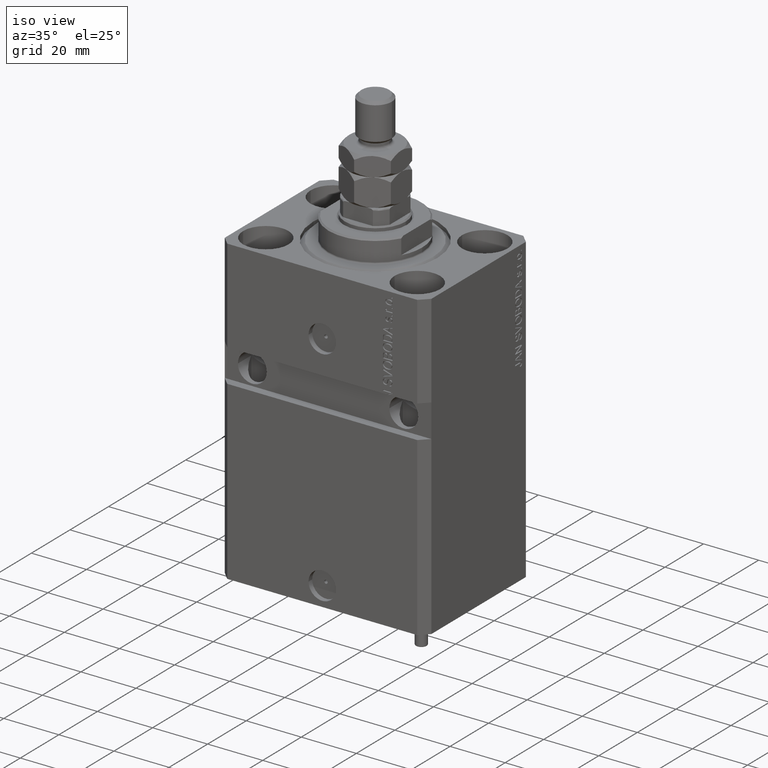
[diagram: clean part render]
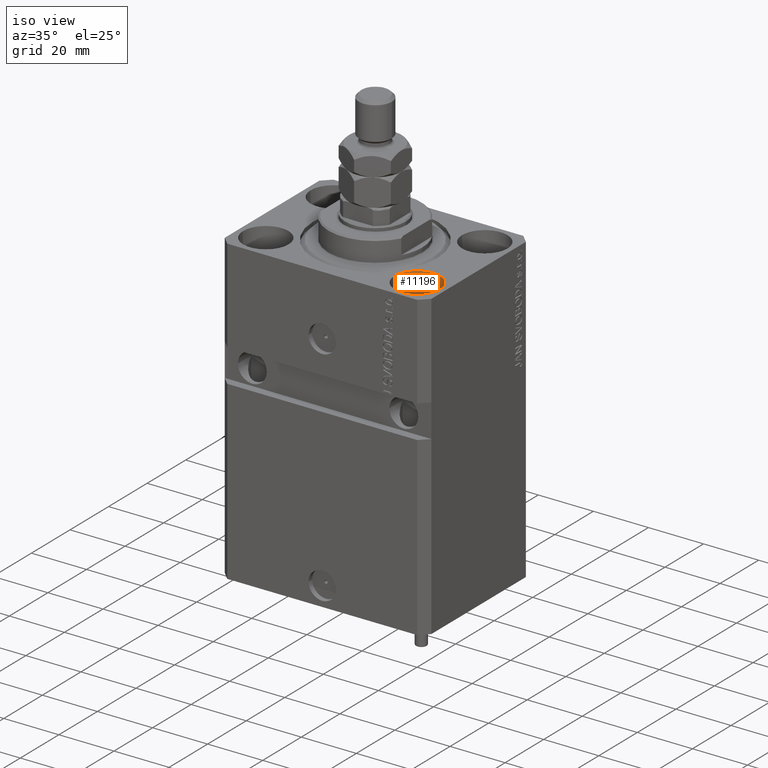
[diagram: same view with one face highlighted and labeled with its STEP entity id]
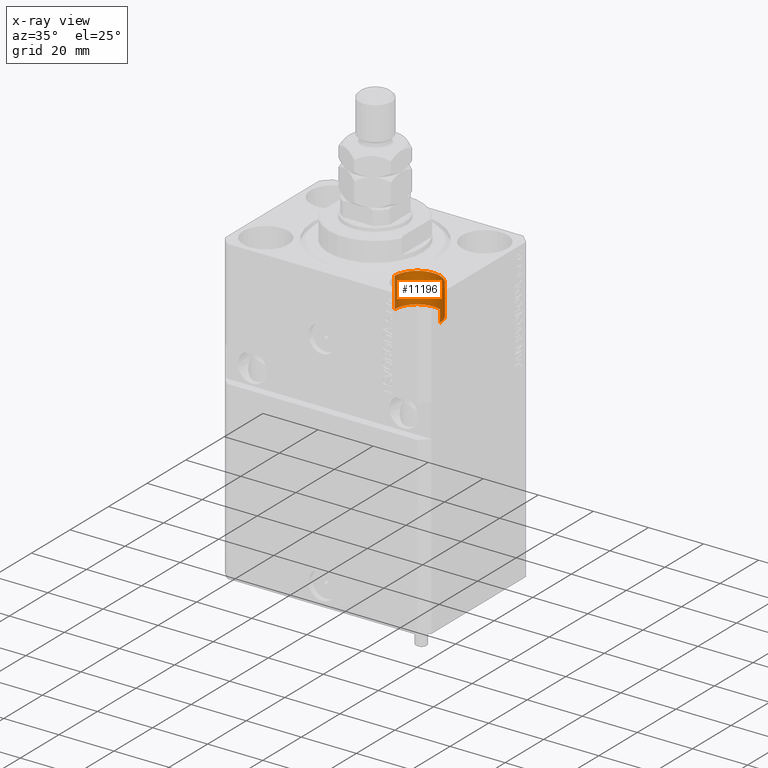
[diagram: x-ray of the same camera — body ghosted, the highlighted face saturated]
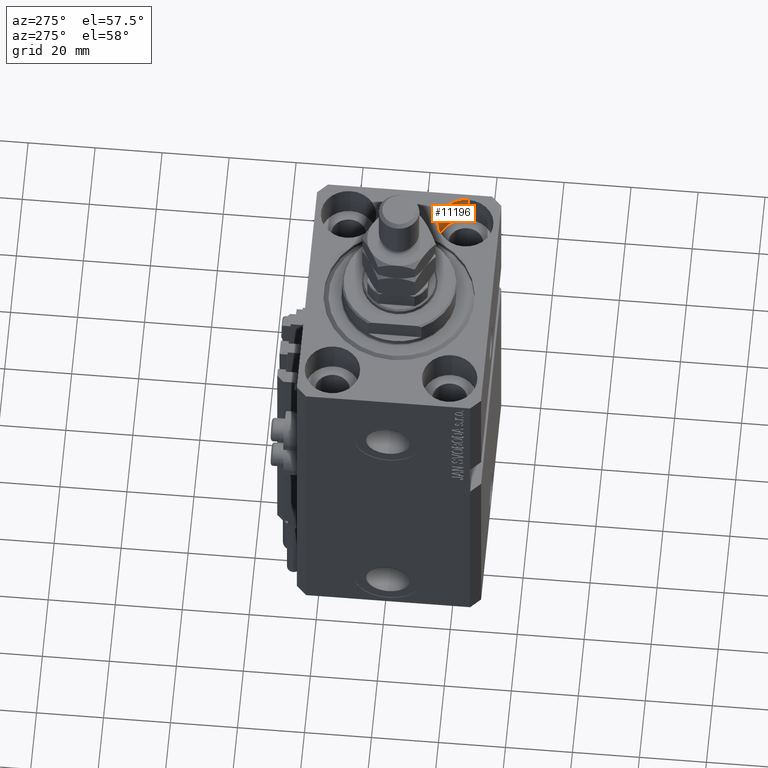
[diagram: same view with one face highlighted and labeled with its STEP entity id]
A machine part, iso view. The second image highlights one B-rep face of the part: STEP entity #11196.
The next image is the same camera in x-ray: the body ghosted, the highlighted face saturated — about 0% of this face is hidden behind the body in this view.
A second angle (auxiliary view) of the same face is appended — the face is thin or edge-on in the first view.
In plain terms, the highlighted cylindrical surface (edge-blend (fillet) strip) has radius 8.25 mm, axis along (0, 0, 1).
Its self-contained STEP definition (entity closure, byte-faithful):
#860 = CARTESIAN_POINT ( 'NONE',  ( 27.50000000000000355, -17.50000000000000000, -11.00000000000000000 ) ) ;
#2175 = DIRECTION ( 'NONE',  ( 1.000000000000000000, 0.000000000000000000, 0.000000000000000000 ) ) ;
#3261 = CARTESIAN_POINT ( 'NONE',  ( 35.75000000000000711, -17.50000000000000000, -11.00000000000000000 ) ) ;
#4107 = FACE_OUTER_BOUND ( 'NONE', #29408, .T. ) ;
#4345 = ORIENTED_EDGE ( 'NONE', *, *, #34519, .F. ) ;
#4470 = DIRECTION ( 'NONE',  ( -0.000000000000000000, -0.000000000000000000, 1.000000000000000000 ) ) ;
#7845 = DIRECTION ( 'NONE',  ( 1.000000000000000000, 0.000000000000000000, 0.000000000000000000 ) ) ;
#7993 = DIRECTION ( 'NONE',  ( 1.000000000000000000, 0.000000000000000000, 0.000000000000000000 ) ) ;
#8481 = DIRECTION ( 'NONE',  ( 0.000000000000000000, 0.000000000000000000, 1.000000000000000000 ) ) ;
#9841 = VERTEX_POINT ( 'NONE', #24267 ) ;
#10200 = EDGE_CURVE ( 'NONE', #46120, #37171, #12219, .T. ) ;
#11196 = ADVANCED_FACE ( 'NONE', ( #4107 ), #39151, .F. ) ;
#12219 = LINE ( 'NONE', #23169, #39285 ) ;
#15173 = CARTESIAN_POINT ( 'NONE',  ( 19.25000000000000000, -17.50000000000000000, -11.00000000000000000 ) ) ;
#15694 = CARTESIAN_POINT ( 'NONE',  ( 27.50000000000000355, -17.50000000000000000, -11.00000000000000000 ) ) ;
#16097 = AXIS2_PLACEMENT_3D ( 'NONE', #15694, #8481, #7993 ) ;
#20717 = ORIENTED_EDGE ( 'NONE', *, *, #27867, .T. ) ;
#23169 = CARTESIAN_POINT ( 'NONE',  ( 35.75000000000000711, -17.50000000000000000, -11.00000000000000000 ) ) ;
#23251 = DIRECTION ( 'NONE',  ( -0.000000000000000000, -0.000000000000000000, 1.000000000000000000 ) ) ;
#23626 = CARTESIAN_POINT ( 'NONE',  ( 19.25000000000000000, -17.50000000000000000, 0.000000000000000000 ) ) ;
#23740 = ORIENTED_EDGE ( 'NONE', *, *, #44591, .F. ) ;
#24267 = CARTESIAN_POINT ( 'NONE',  ( 19.25000000000000000, -17.50000000000000000, -11.00000000000000000 ) ) ;
#25039 = CARTESIAN_POINT ( 'NONE',  ( 27.50000000000000355, -17.50000000000000000, 0.000000000000000000 ) ) ;
#27386 = DIRECTION ( 'NONE',  ( -0.000000000000000000, -0.000000000000000000, 1.000000000000000000 ) ) ;
#27867 = EDGE_CURVE ( 'NONE', #37171, #44636, #30308, .T. ) ;
#29052 = CARTESIAN_POINT ( 'NONE',  ( 35.75000000000000711, -17.50000000000000000, 0.000000000000000000 ) ) ;
#29408 = EDGE_LOOP ( 'NONE', ( #23740, #4345, #32955, #20717 ) ) ;
#30308 = CIRCLE ( 'NONE', #46217, 8.250000000000000000 ) ;
#30980 = VECTOR ( 'NONE', #4470, 1000.000000000000000 ) ;
#32763 = DIRECTION ( 'NONE',  ( 0.000000000000000000, 0.000000000000000000, 1.000000000000000000 ) ) ;
#32955 = ORIENTED_EDGE ( 'NONE', *, *, #10200, .T. ) ;
#32965 = AXIS2_PLACEMENT_3D ( 'NONE', #860, #23251, #7845 ) ;
#34519 = EDGE_CURVE ( 'NONE', #46120, #9841, #37539, .T. ) ;
#35048 = LINE ( 'NONE', #15173, #30980 ) ;
#37171 = VERTEX_POINT ( 'NONE', #29052 ) ;
#37539 = CIRCLE ( 'NONE', #16097, 8.250000000000000000 ) ;
#39151 = CYLINDRICAL_SURFACE ( 'NONE', #32965, 8.250000000000000000 ) ;
#39285 = VECTOR ( 'NONE', #27386, 1000.000000000000000 ) ;
#44591 = EDGE_CURVE ( 'NONE', #9841, #44636, #35048, .T. ) ;
#44636 = VERTEX_POINT ( 'NONE', #23626 ) ;
#46120 = VERTEX_POINT ( 'NONE', #3261 ) ;
#46217 = AXIS2_PLACEMENT_3D ( 'NONE', #25039, #32763, #2175 ) ;